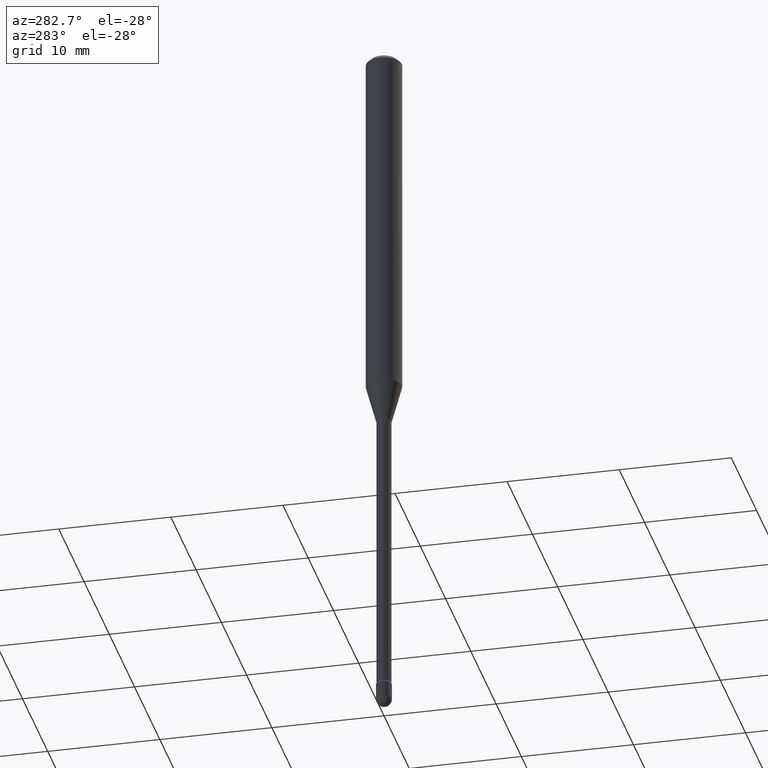
[diagram: clean part render]
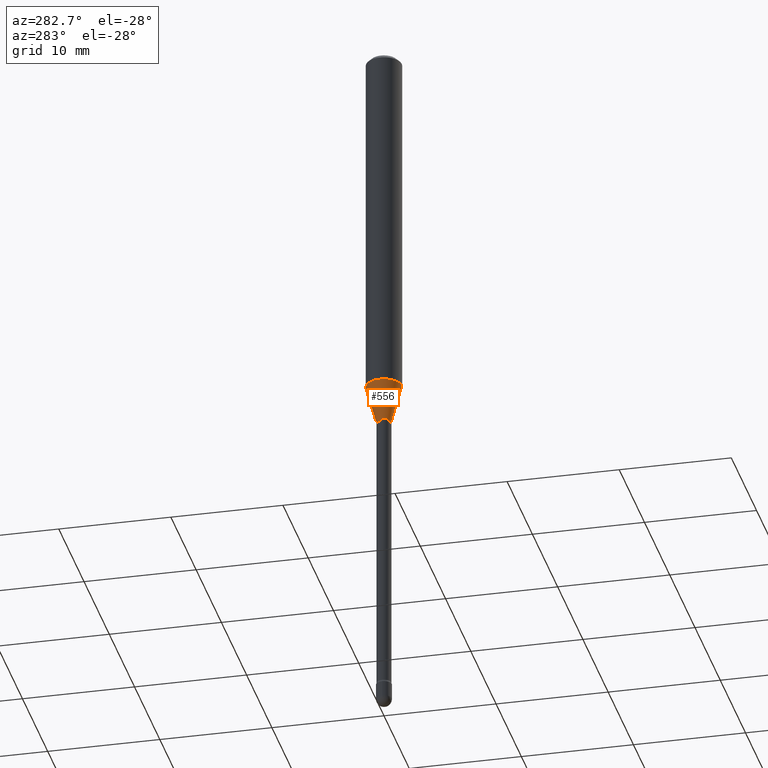
[diagram: same view with one face highlighted and labeled with its STEP entity id]
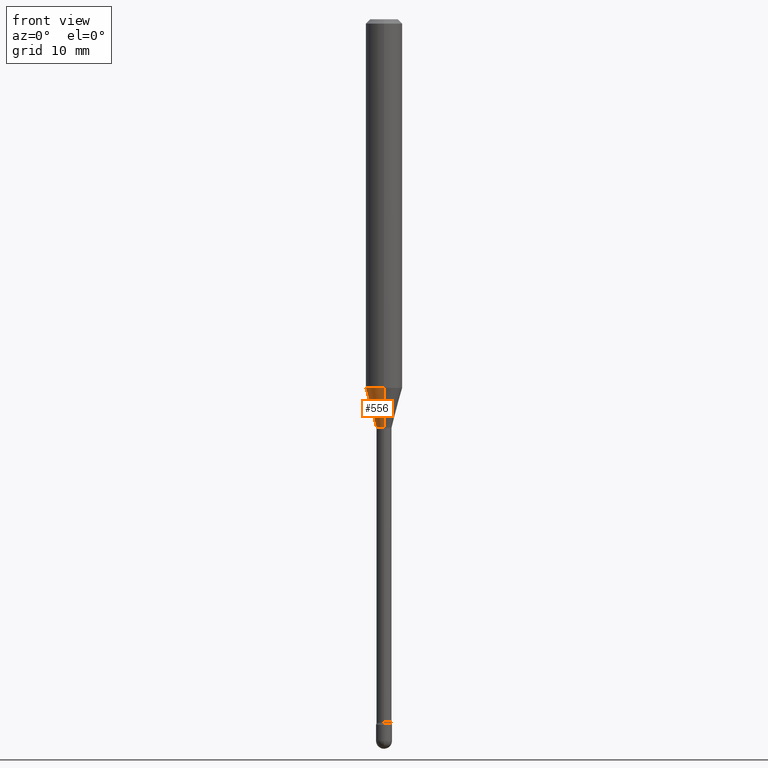
[diagram: same view with one face highlighted and labeled with its STEP entity id]
A machine part, auxiliary view. The second image highlights one B-rep face of the part: STEP entity #556.
A second angle (front view) of the same face is appended — the face is thin or edge-on in the first view.
In plain terms, the highlighted conical surface has half-angle 15 deg.
Its self-contained STEP definition (entity closure, byte-faithful):
#8 = CARTESIAN_POINT ( 'NONE',  ( 4.440892098500932831E-16, 0.06249999999999556605, -1.263220337902600798 ) ) ;
#16 = DIRECTION ( 'NONE',  ( 1.839019923739596371E-15, 0.2588190451025244032, 0.9659258262890673130 ) ) ;
#28 = DIRECTION ( 'NONE',  ( -6.982962677686265922E-15, -1.000000000000000000, 4.370956789862821150E-15 ) ) ;
#65 = CARTESIAN_POINT ( 'NONE',  ( -1.840786654676023495E-16, -0.02636111260566886480, -1.398092501787272957 ) ) ;
#74 = ORIENTED_EDGE ( 'NONE', *, *, #323, .F. ) ;
#99 = CARTESIAN_POINT ( 'NONE',  ( -1.840786654676023495E-16, -0.02636111260566886480, -1.398092501787272957 ) ) ;
#105 = EDGE_CURVE ( 'NONE', #193, #117, #446, .T. ) ;
#113 = EDGE_CURVE ( 'NONE', #117, #155, #455, .T. ) ;
#117 = VERTEX_POINT ( 'NONE', #99 ) ;
#151 = DIRECTION ( 'NONE',  ( -2.445420001078101296E-29, 3.491551230534234238E-15, 1.000000000000000000 ) ) ;
#155 = VERTEX_POINT ( 'NONE', #242 ) ;
#173 = VECTOR ( 'NONE', #16, 39.37007874015748143 ) ;
#176 = EDGE_CURVE ( 'NONE', #508, #155, #564, .T. ) ;
#188 = EDGE_LOOP ( 'NONE', ( #74, #501, #238, #543 ) ) ;
#193 = VERTEX_POINT ( 'NONE', #558 ) ;
#237 = DIRECTION ( 'NONE',  ( -6.982962677686265922E-15, -1.000000000000000000, 0.000000000000000000 ) ) ;
#238 = ORIENTED_EDGE ( 'NONE', *, *, #113, .T. ) ;
#242 = CARTESIAN_POINT ( 'NONE',  ( -4.364351673553609038E-16, -0.06250000000000442701, -1.263220337902600354 ) ) ;
#271 = CARTESIAN_POINT ( 'NONE',  ( 3.418923367227918324E-29, -4.881511595016037961E-15, -1.398092501787272957 ) ) ;
#313 = FACE_OUTER_BOUND ( 'NONE', #188, .T. ) ;
#323 = EDGE_CURVE ( 'NONE', #193, #508, #454, .T. ) ;
#331 = AXIS2_PLACEMENT_3D ( 'NONE', #271, #442, #237 ) ;
#346 = AXIS2_PLACEMENT_3D ( 'NONE', #489, #151, #445 ) ;
#365 = AXIS2_PLACEMENT_3D ( 'NONE', #527, #441, #28 ) ;
#400 = CONICAL_SURFACE ( 'NONE', #331, 0.02636111260566398329, 0.2617993877991496854 ) ;
#411 = CARTESIAN_POINT ( 'NONE',  ( 1.873069706851196406E-16, 0.02636111260565909831, -1.398092501787272957 ) ) ;
#439 = DIRECTION ( 'NONE',  ( -1.807323732225326195E-15, -0.2588190451025176309, 0.9659258262890690894 ) ) ;
#441 = DIRECTION ( 'NONE',  ( -2.445420001078101296E-29, 3.491551230534234238E-15, 1.000000000000000000 ) ) ;
#442 = DIRECTION ( 'NONE',  ( -2.445420001078101296E-29, 3.491551230534234238E-15, 1.000000000000000000 ) ) ;
#445 = DIRECTION ( 'NONE',  ( -6.982962677686265922E-15, -1.000000000000000000, 0.000000000000000000 ) ) ;
#446 = CIRCLE ( 'NONE', #346, 0.02636111260566398329 ) ;
#454 = LINE ( 'NONE', #411, #173 ) ;
#455 = LINE ( 'NONE', #65, #526 ) ;
#489 = CARTESIAN_POINT ( 'NONE',  ( 3.418923367227918324E-29, -4.881511595016037961E-15, -1.398092501787272957 ) ) ;
#501 = ORIENTED_EDGE ( 'NONE', *, *, #105, .T. ) ;
#508 = VERTEX_POINT ( 'NONE', #8 ) ;
#526 = VECTOR ( 'NONE', #439, 39.37007874015748854 ) ;
#527 = CARTESIAN_POINT ( 'NONE',  ( 3.089104280075657330E-29, -4.410598525239695969E-15, -1.263220337902600576 ) ) ;
#543 = ORIENTED_EDGE ( 'NONE', *, *, #176, .F. ) ;
#556 = ADVANCED_FACE ( 'NONE', ( #313 ), #400, .T. ) ;
#558 = CARTESIAN_POINT ( 'NONE',  ( 3.156980902676066467E-16, 0.02636111260565909831, -1.398092501787272957 ) ) ;
#564 = CIRCLE ( 'NONE', #365, 0.06250000000000000000 ) ;